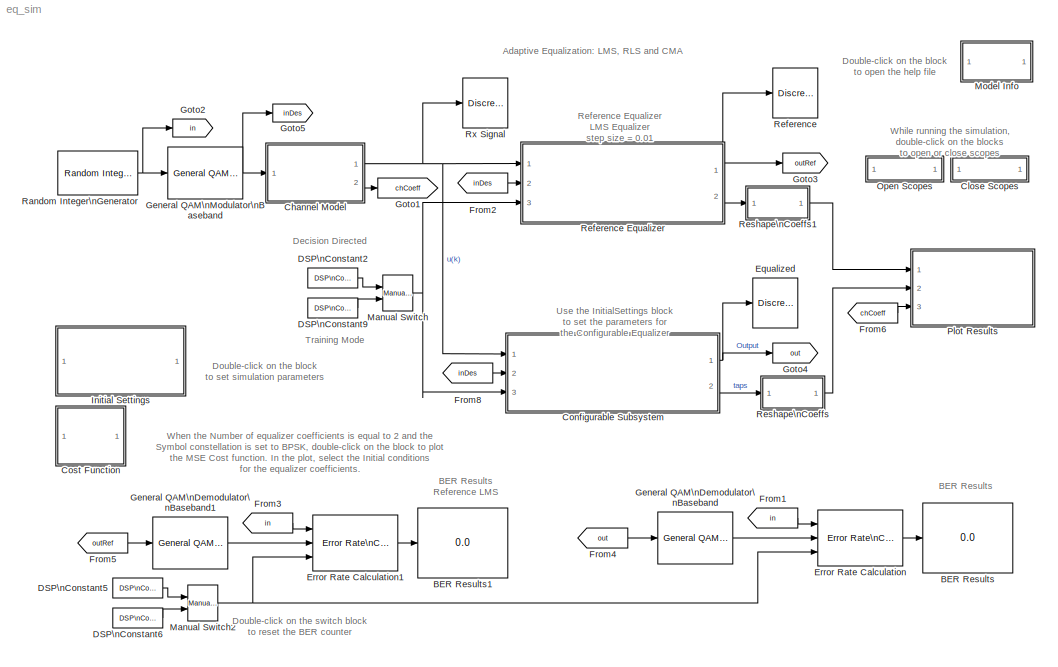
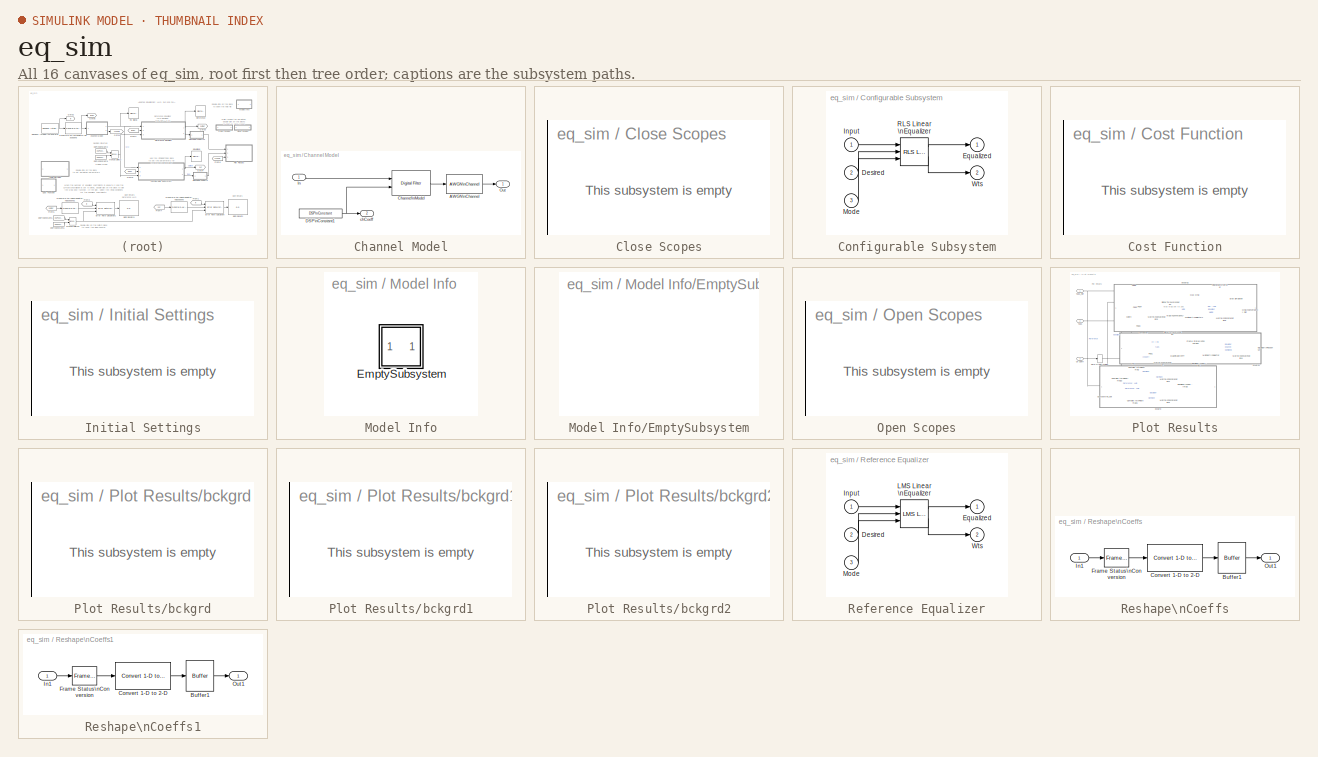
[diagram: thumbnail index - all 16 canvases of the model, root first then tree order]
MODEL eq_sim
KIND model
CONFIG StopFcn = % Call to callback function in eq_initmask\nif exist('taps','var')\neq_initmask([gcs '/Initial Settings'],'plotCostTrajectory',taps,tapsRef,eq);\nend
WORKSPACE source: external: M-Code  (data not in archive)
BLOCK [Display] BER Results
  Decimation = 1
  Ports = [1]
BLOCK [Display] BER Results1
  Decimation = 1
  Ports = [1]
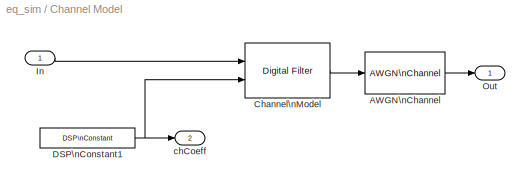
BLOCK [SubSystem] Channel Model
  MaskCallbackString = |
  MaskDisplay = plot([-pi:pi/128:(pi-pi/128)],chCoeff_fdB);
  MaskEnableString = on,on
  MaskIconFrame = on
  MaskIconOpaque = on
  MaskIconRotate = none
  MaskIconUnits = autoscale
  MaskInitialization = chCoeff_fdB = 10*log10(abs(abs(fftshift(fft(chCoeff,256)))));\nsigmaN2 = 10^(-snrdB/10);
  MaskPromptString = Channel Coefficients:|SNR (in dB):
  MaskStyleString = edit,edit
  MaskTabNameString = ,
  MaskToolTipString = on,on
  MaskTunableValueString = on,on
  MaskType = Channel Model
  MaskValueString = eq.chCoeff|eq.snrdB
  MaskVarAliasString = ,
  MaskVariables = chCoeff=@1;snrdB=@2;
  MaskVisibilityString = on,on
  MinAlgLoopOccurrences = off
  Ports = [1, 2]
  PropExecContextAcrossSSBoundary = on
  RTWSystemCode = Auto
  TreatAsAtomicUnit = off
BLOCK [Reference] Channel Model/AWGN\nChannel  REF=commchan2/AWGN\nChannel
  EbNodB = 10
  EsNodB = 10
  Ports = [1, 1]
  Ps = 1
  SNRdB = snrdB
  ShowPortLabels = on
  SourceBlock = commchan2/AWGN\nChannel
  SourceType = AWGN Channel
  Tsym = 1
  bitsPerSym = 1
  noiseMode = Signal to noise ratio  (SNR)
  seed = 1237
  variance = sigmaN2
BLOCK [Reference] Channel Model/Channel\nModel  REF=dsparch4/Digital Filter
  AllPoleFiltStruct = Direct form
  BiQuadCoeffs = [1 0.3 0.4 1 0.1 0.2]
  CoeffSource = Input port(s)
  DenCoeffs = [1 0.1]
  FIRFiltStruct = Direct form transposed
  FiltPerSampPopup = One filter per frame
  IC = 0
  ICden = 0
  ICnum = 0
  IIRFiltStruct = Direct form II transposed
  LatticeCoeffs = [0.2 0.4]
  NumCoeffs = chCoeff
  Ports = [2, 1]
  SourceBlock = dsparch4/Digital Filter
  SourceType = Digital Filter
  TypePopup = FIR (all zeros)
  accumFracLength = 30
  accumMode = Same as product output
  accumWordLength = 32
  additionalParams = off
  allowOverrides = on
  denIgnore = on
  firstCoeffFracLength = 15
  firstCoeffMode = Same as input
  firstCoeffWordLength = 16
  memoryFracLength = 15
  memoryMode = Same as input
  memoryWordLength = 16
  outputFracLength = 15
  outputMode = Same as input
  outputWordLength = 16
  overflowMode = off
  prodOutputFracLength = 30
  prodOutputMode = Same as input
  prodOutputWordLength = 32
  roundingMode = Floor
  secondCoeffFracLength = 15
  secondCoeffMode = Same as numerator
  secondCoeffWordLength = 16
  showAcc = off
  showCoeff = off
  showMem = off
  showMpy = off
  showOut = off
  thirdCoeffFracLength = 15
  thirdCoeffMode = Same as input
  thirdCoeffWordLength = 16
BLOCK [Reference] Channel Model/DSP\nConstant1  REF=dspsrcs4/DSP\nConstant
  FramebasedOutput = on
  InterpretAs1D = off
  Ports = [0, 1]
  SampleMode = Discrete
  ShowPortLabels = on
  SourceBlock = dspsrcs4/DSP\nConstant
  SourceType = DSP Constant
  Ts = 1
  Value = eq.chCoeff
  additionalParams = off
  allowOverrides = on
  continuousOutput = Sample-based
  dataType = Inherit from 'Constant value'
  discreteOutput = Frame-based
  fracBitsMode = Best precision
  framePeriod = 1
  numFracBits = 15
  sampTime = 1
  udDataType = sfix(16)
  wordLen = 16
BLOCK [Inport] Channel Model/In
  IconDisplay = Port number
  LatchInput = off
BLOCK [Outport] Channel Model/Out
  BusOutputAsStruct = off
  IconDisplay = Port number
BLOCK [Outport] Channel Model/chCoeff
  BusOutputAsStruct = off
  IconDisplay = Port number
  Port = 2
BLOCK [SubSystem] Close Scopes
  MaskDisplay = disp('Close Scopes');
  MaskIconFrame = on
  MaskIconOpaque = on
  MaskIconRotate = none
  MaskIconUnits = autoscale
  MinAlgLoopOccurrences = off
  OpenFcn = str1 = 'Plot Results';                                                     \n        str2 = 'MSE Convergency Plot';                                             \n        str3 = 'Equalizer Response';                                               \n        str4 = 'Equalizer Taps - Real';                                            \n        str5 = 'Equalizer Taps - Imag';                             ...<+1026ch>
  Ports = []
  PropExecContextAcrossSSBoundary = on
  RTWSystemCode = Auto
  TreatAsAtomicUnit = off
BLOCK [SubSystem] Configurable Subsystem
  AttributesFormatString = %<BlockChoice>
  BlockChoice = RLS Linear  Equalizer
  MaskDisplay = disp(get_param(gcb,'BlockChoice'))
  MaskIconFrame = on
  MaskIconOpaque = off
  MaskIconRotate = none
  MaskIconUnits = autoscale
  MemberBlocks = CMA Equalizer,LMS Linear  Equalizer,Normalized LMS  Linear Equalizer,RLS Linear  Equalizer,Sign LMS Linear  Equalizer,Variable Step LMS  Linear Equalizer
  MinAlgLoopOccurrences = off
  Ports = [3, 2]
  PropExecContextAcrossSSBoundary = on
  RTWSystemCode = Auto
  TemplateBlock = eq_lib/Configurable Subsystem
  TreatAsAtomicUnit = off
BLOCK [Inport] Configurable Subsystem/Desired
  IconDisplay = Port number
  LatchInput = off
  Port = 2
BLOCK [Outport] Configurable Subsystem/Equalized
  BusOutputAsStruct = off
  IconDisplay = Port number
BLOCK [Inport] Configurable Subsystem/Input
  IconDisplay = Port number
  LatchInput = off
BLOCK [Inport] Configurable Subsystem/Mode
  IconDisplay = Port number
  LatchInput = off
  Port = 3
BLOCK [Reference] Configurable Subsystem/RLS Linear \nEqualizer  REF=commeq2/RLS Linear \nEqualizer
  Ports = [3, 2]
  ShowPortLabels = on
  SourceBlock = commeq2/RLS Linear \nEqualizer
  SourceType = RLS Linear Equalizer
  delay = eq.delta_opt+1
  initWeights = eq.ic
  invCorr = eq.icCorr
  lambda = eq.lambda
  mode = on
  nSamp = 1
  nTaps = eq.numTaps
  outErr = off
  outWeights = on
  sigConst = eq.const
BLOCK [Outport] Configurable Subsystem/Wts
  BusOutputAsStruct = off
  IconDisplay = Port number
  Port = 2
BLOCK [SubSystem] Cost Function
  MaskDisplay = disp('Plot\\nCost\\nFunction');
  MaskHelp = eval('commdemohelp;');
  MaskIconFrame = on
  MaskIconOpaque = on
  MaskIconRotate = none
  MaskIconUnits = autoscale
  MaskType = Plot Cost Function
  MinAlgLoopOccurrences = off
  OpenFcn = eq_initmask([gcs '/Initial Settings'],'plotCostFcn');
  Ports = []
  PropExecContextAcrossSSBoundary = on
  RTWSystemCode = Auto
  TreatAsAtomicUnit = off
BLOCK [Reference] DSP\nConstant2  REF=dspsrcs4/DSP\nConstant
  AttributesFormatString = <path>
  FramebasedOutput = on
  InterpretAs1D = off
  Ports = [0, 1]
  SampleMode = Discrete
  ShowPortLabels = on
  SourceBlock = dspsrcs4/DSP\nConstant
  SourceType = DSP Constant
  Ts = 1
  Value = 0
  additionalParams = off
  allowOverrides = on
  continuousOutput = Sample-based
  dataType = Inherit from 'Constant value'
  discreteOutput = Frame-based
  fracBitsMode = Best precision
  framePeriod = 1
  isSigned = on
  numFracBits = 15
  sampTime = 1
  udDataType = sfix(16)
  wordLen = 16
BLOCK [Reference] DSP\nConstant5  REF=dspsrcs4/DSP\nConstant
  AttributesFormatString = <path>
  FramebasedOutput = on
  InterpretAs1D = off
  Ports = [0, 1]
  SampleMode = Discrete
  ShowPortLabels = on
  SourceBlock = dspsrcs4/DSP\nConstant
  SourceType = DSP Constant
  Ts = 1
  Value = 0
  additionalParams = off
  allowOverrides = on
  continuousOutput = Sample-based
  dataType = Inherit from 'Constant value'
  discreteOutput = Frame-based
  fracBitsMode = Best precision
  framePeriod = 1
  isSigned = on
  numFracBits = 15
  sampTime = 1
  udDataType = sfix(16)
  wordLen = 16
BLOCK [Reference] DSP\nConstant6  REF=dspsrcs4/DSP\nConstant
  AttributesFormatString = <path>
  FramebasedOutput = on
  InterpretAs1D = off
  Ports = [0, 1]
  SampleMode = Discrete
  ShowPortLabels = on
  SourceBlock = dspsrcs4/DSP\nConstant
  SourceType = DSP Constant
  Ts = 1
  Value = 1
  additionalParams = off
  allowOverrides = on
  continuousOutput = Sample-based
  dataType = Inherit from 'Constant value'
  discreteOutput = Frame-based
  fracBitsMode = Best precision
  framePeriod = 1
  isSigned = on
  numFracBits = 15
  sampTime = 1
  udDataType = sfix(16)
  wordLen = 16
BLOCK [Reference] DSP\nConstant9  REF=dspsrcs4/DSP\nConstant
  AttributesFormatString = <path>
  FramebasedOutput = on
  InterpretAs1D = off
  Ports = [0, 1]
  SampleMode = Discrete
  ShowPortLabels = on
  SourceBlock = dspsrcs4/DSP\nConstant
  SourceType = DSP Constant
  Ts = 1
  Value = 1
  additionalParams = off
  allowOverrides = on
  continuousOutput = Sample-based
  dataType = Inherit from 'Constant value'
  discreteOutput = Frame-based
  fracBitsMode = Best precision
  framePeriod = 1
  isSigned = on
  numFracBits = 15
  sampTime = 1
  udDataType = sfix(16)
  wordLen = 16
BLOCK [Reference] Equalized  REF=commsink2/Discrete-Time\nScatter Plot\nScope
  AxisGrid = on
  FigPos = [700 100 197 197]
  FrameNumber = off
  LineColors = b
  LineMarkers = .
  Ports = [1]
  ShowPortLabels = on
  SourceBlock = commsink2/Discrete-Time\nScatter Plot\nScope
  SourceType = Discrete-Time Scatter Plot Scope
  Tag = ScatterPlot
  block_type_ = scatter
  fading = on
  numLinesMax = 50
  numNewFrames = 100
  numTraces = 200
  offsetEye = 0
  openScopeAtSimStart = on
  render = on
  sampPerSymb = 1
  xMax = 1.67983399922447
  xMin = -1.6655405290464
  yMax = 1.65049533086826
  yMin = -1.69487919740261
BLOCK [Reference] Error Rate Calculation  REF=commsink2/Error Rate\nCalculation
  N = eq.delta_opt+1
  PMode = Port
  Ports = [3, 1]
  RsMode2 = on
  SourceBlock = commsink2/Error Rate\nCalculation
  SourceType = Error Rate Calculation
  WsName = ErrorVec
  cp_mode = Entire frame
  maxBits = 1e6
  numErr = 100
  st_delay = 0
  stop = off
  subframe = []
BLOCK [Reference] Error Rate Calculation1  REF=commsink2/Error Rate\nCalculation
  N = eq.delta_opt+1
  PMode = Port
  Ports = [3, 1]
  RsMode2 = on
  SourceBlock = commsink2/Error Rate\nCalculation
  SourceType = Error Rate Calculation
  WsName = ErrorVec
  cp_mode = Entire frame
  maxBits = 1e6
  numErr = 100
  st_delay = 0
  stop = off
  subframe = []
BLOCK [From] From1
  CloseFcn = tagdialog Close
  DialogController = Simulink.DDGSource
  GotoTag = in
BLOCK [From] From2
  CloseFcn = tagdialog Close
  DialogController = Simulink.DDGSource
  GotoTag = inDes
BLOCK [From] From3
  CloseFcn = tagdialog Close
  DialogController = Simulink.DDGSource
  GotoTag = in
BLOCK [From] From4
  CloseFcn = tagdialog Close
  DialogController = Simulink.DDGSource
  GotoTag = out
BLOCK [From] From5
  CloseFcn = tagdialog Close
  DialogController = Simulink.DDGSource
  GotoTag = outRef
BLOCK [From] From6
  CloseFcn = tagdialog Close
  DialogController = Simulink.DDGSource
  GotoTag = chCoeff
BLOCK [From] From8
  CloseFcn = tagdialog Close
  DialogController = Simulink.DDGSource
  GotoTag = inDes
BLOCK [Reference] General QAM\nDemodulator\nBaseband  REF=commdigbbndam2/General QAM\nDemodulator\nBaseband
  Ports = [1, 1]
  SigCon = eq.const
  SourceBlock = commdigbbndam2/General QAM\nDemodulator\nBaseband
  SourceType = General QAM Demodulator Baseband
  numSamp = 1
BLOCK [Reference] General QAM\nDemodulator\nBaseband1  REF=commdigbbndam2/General QAM\nDemodulator\nBaseband
  Ports = [1, 1]
  SigCon = eq.const
  SourceBlock = commdigbbndam2/General QAM\nDemodulator\nBaseband
  SourceType = General QAM Demodulator Baseband
  numSamp = 1
BLOCK [Reference] General QAM\nModulator\nBaseband  REF=commdigbbndam2/General QAM\nModulator\nBaseband
  Ports = [1, 1]
  SigCon = eq.const
  SourceBlock = commdigbbndam2/General QAM\nModulator\nBaseband
  SourceType = General QAM Modulator Baseband
  numSamp = 1
BLOCK [Goto] Goto1
  DialogController = Simulink.DDGSource
  GotoTag = chCoeff
  TagVisibility = global
BLOCK [Goto] Goto2
  DialogController = Simulink.DDGSource
  GotoTag = in
  TagVisibility = global
BLOCK [Goto] Goto3
  DialogController = Simulink.DDGSource
  GotoTag = outRef
  TagVisibility = global
BLOCK [Goto] Goto4
  DialogController = Simulink.DDGSource
  GotoTag = out
  TagVisibility = global
BLOCK [Goto] Goto5
  DialogController = Simulink.DDGSource
  GotoTag = inDes
  TagVisibility = global
BLOCK [SubSystem] Initial Settings
  MaskCallbackString = ||eq_initmask(gcb,'cbNumTaps');|eq_initmask(gcb,'cbEqAlg');|eq_initmask(gcb,'cbSymConst');|eq_initmask(gcb,'cbSymConstCMA');|eq_initmask(gcb,'cbMconst');|||||||||||
  MaskDescription = Compare the performance of different T-space linear equalizers with a reference equalizer.\n\nUse the following mask to select the different parameters for the simulation.
  MaskDisplay = disp('Initial Settings')
  MaskEnableString = on,on,on,on,on,off,on,off,off,off,off,off,off,off,on,on,on,on
  MaskHelp = eval('commdemohelp;');
  MaskIconFrame = on
  MaskIconOpaque = on
  MaskIconRotate = none
  MaskIconUnits = autoscale
  MaskInitialization = eStr = eq_initmask(gcb,'init');\n		\nif ~isempty(eStr.emsg)\n	errordlg(eStr.emsg, 'Equalizer Demo', 'replace');\nend\n\nif ~isempty(eStr.emsg_w) \n	warndlg(eStr.emsg_w, 'Equalizer Demo', 'replace');\nend\n\n
  MaskPromptString = FIR Channel coefficients:|SNR (in dB):|Number of equalizer coefficients:|Equalization Algorithm|Symbol Constellation|Symbol Constellation|Number of points in constellation:|Step-size:|Normalization bias:|Leakage factor:|Initial Step-size parameter:|Increment value of Step-size parameter:|Maximum Step-size parameter:|Minimum Step-size parameter:|Forgetting factor (lambda):|Initial conditions for in...<+112ch>
  MaskSelfModifiable = on
  MaskStyleString = edit,edit,edit,popup(LMS - Least-Mean-Square|Sign LMS|NLMS - Normalized LMS|VSLMS - Variable Step-size LMS|RLS - Recursive Least-Squares|CMA - Constant Modulus Algorithm),popup(BPSK|QPSK|M-PSK|M-QAM),popup(BPSK|QPSK|M-PSK),edit,edit,edit,edit,edit,edit,edit,edit,edit,edit,edit,checkbox
  MaskTabNameString = ,,,,,,,,,,,,,,,,,
  MaskToolTipString = on,on,on,on,on,on,on,on,on,on,on,on,on,on,on,on,on,on
  MaskTunableValueString = off,off,off,off,off,off,off,off,off,off,off,off,off,off,off,off,off,off
  MaskType = Adaptive Equalization Example
  MaskValueString = [1 0.5 0.3]|40|2|RLS - Recursive Least-Squares|BPSK|BPSK|16|0.1|1e-3|1|0.1|0.01|0.3|1e-4|0.9|100|[0.62379    -0.17516]|off
  MaskVarAliasString = ,,,,,,,,,,,,,,,,,
  MaskVariables = chCoeff=@1;snrdB=@2;numTaps=@3;eqAlg=@4;symConst=@5;symConstCMA=@6;Mconst=@7;stepSize=@8;normalBias=@9;leakage=@10;muParIni=@11;muParStep=@12;muParMax=@13;muParMin=@14;lambdaPar=@15;icCorr=@16;icCoeff=@17;displayChk=@18;
  MaskVisibilityString = on,on,on,on,on,off,off,off,off,off,off,off,off,off,on,on,on,on
  MinAlgLoopOccurrences = off
  Ports = []
  PropExecContextAcrossSSBoundary = on
  RTWSystemCode = Auto
  TreatAsAtomicUnit = off
BLOCK [Reference] Manual Switch  REF=simulink/Signal\nRouting/Manual Switch
  Ports = [2, 1]
  ShowPortLabels = on
  SourceBlock = simulink/Signal\nRouting/Manual Switch
  SourceType = Manual Switch
  action = 0
  sw = 0
BLOCK [Reference] Manual Switch2  REF=simulink/Signal\nRouting/Manual Switch
  Ports = [2, 1]
  ShowPortLabels = on
  SourceBlock = simulink/Signal\nRouting/Manual Switch
  SourceType = Manual Switch
  action = 0
  sw = 1
BLOCK [SubSystem] Model Info
  CopyFcn = slcm CopyBlock;
  DeleteFcn = slcm Cancel;
  InitFcn = slcm('UpdateAllCMBlocksInThisModelInit')
  LoadFcn = slcm LoadBlock;
  MaskCallbackString = ||||||||||||||||||||||||||||||
  MaskDescription = This block allows revision control information to be displayed within the model.
  MaskDisplay = text(str2num(LeftAlignmentValue), 0.5, MaskDisplayString, 'HorizontalAlignment', HorizontalTextAlignment)\n
  MaskEnableString = on,on,on,on,on,on,on,on,on,on,on,on,on,on,on,on,on,on,on,on,on,on,on,on,on,on,on,on,on,on,on
  MaskIconFrame = on
  MaskIconOpaque = on
  MaskIconRotate = none
  MaskIconUnits = normalized
  MaskPromptString = InitialSaveTempField|InitialBlockCM|BlockCM|Frame|SaveTempField|DisplayStringWithTags|MaskDisplayString|HorizontalTextAlignment|LeftAlignmentValue|SourceBlockDiagram|TagMaxNumber|CMTag1|CMTag2|CMTag3|CMTag4|CMTag5|CMTag6|CMTag7|CMTag8|CMTag9|CMTag10|CMTag11|CMTag12|CMTag13|CMTag14|CMTag15|CMTag16|CMTag17|CMTag18|CMTag19|CMTag20
  MaskSelfModifiable = on
  MaskStyleString = edit,edit,edit,edit,edit,edit,edit,edit,edit,edit,edit,edit,edit,edit,edit,edit,edit,edit,edit,edit,edit,edit,edit,edit,edit,edit,edit,edit,edit,edit,edit
  MaskTabNameString = ,,,,,,,,,,,,,,,,,,,,,,,,,,,,,,
  MaskToolTipString = on,on,on,on,on,on,on,on,on,on,on,on,on,on,on,on,on,on,on,on,on,on,on,on,on,on,on,on,on,on,on
  MaskTunableValueString = on,on,on,on,on,on,on,on,on,on,on,on,on,on,on,on,on,on,on,on,on,on,on,on,on,on,on,on,on,on,on
  MaskType = CMBlock
  MaskValueString = |none|none|on||Info|Info|Center|0.5|eq_sim|20||||||||||||||||||||
  MaskVarAliasString = ,,,,,,,,,,,,,,,,,,,,,,,,,,,,,,
  MaskVariables = InitialSaveTempField=&1;InitialBlockCM=&2;BlockCM=&3;Frame=&4;SaveTempField=&5;DisplayStringWithTags=&6;MaskDisplayString=&7;HorizontalTextAlignment=&8;LeftAlignmentValue=&9;SourceBlockDiagram=&10;TagMaxNumber=@11;CMTag1=&12;CMTag2=&13;CMTag3=&14;CMTag4=&15;CMTag5=&16;CMTag6=&17;CMTag7=&18;CMTag8=&19;CMTag9=&20;CMTag10=&21;CMTag11=&22;CMTag12=&23;CMTag13=&24;CMTag14=&25;CMTag15=&26;CMTag16=&27;CMT...<+45ch>
  MaskVisibilityString = off,off,off,off,off,off,off,off,off,off,off,off,off,off,off,off,off,off,off,off,off,off,off,off,off,off,off,off,off,off,off
  MinAlgLoopOccurrences = off
  NameChangeFcn = slcm Rename;
  OpenFcn = commdemohelp;
  Ports = []
  PostSaveFcn = slcm('UpdateAllCMBlocksInThisModel')
  PropExecContextAcrossSSBoundary = on
  RTWSystemCode = Auto
  TreatAsAtomicUnit = off
BLOCK [SubSystem] Model Info/EmptySubsystem
  MinAlgLoopOccurrences = off
  Ports = []
  PropExecContextAcrossSSBoundary = on
  RTWSystemCode = Auto
  TreatAsAtomicUnit = off
BLOCK [SubSystem] Open Scopes
  MaskDisplay = disp('Open Scopes');
  MaskIconFrame = on
  MaskIconOpaque = on
  MaskIconRotate = none
  MaskIconUnits = autoscale
  MaskType = Open Scopes
  MinAlgLoopOccurrences = off
  OpenFcn = str1 = 'Plot Results';                                                            \n        str2 = 'MSE Convergency Plot';                                            \n        str3 = 'Equalizer Response';                                              \n        str4 = 'Equalizer Taps - Real';                                           \n        str5 = 'Equalizer Taps - Imag';                         ...<+1017ch>
  Ports = []
  PropExecContextAcrossSSBoundary = on
  RTWSystemCode = Auto
  TreatAsAtomicUnit = off
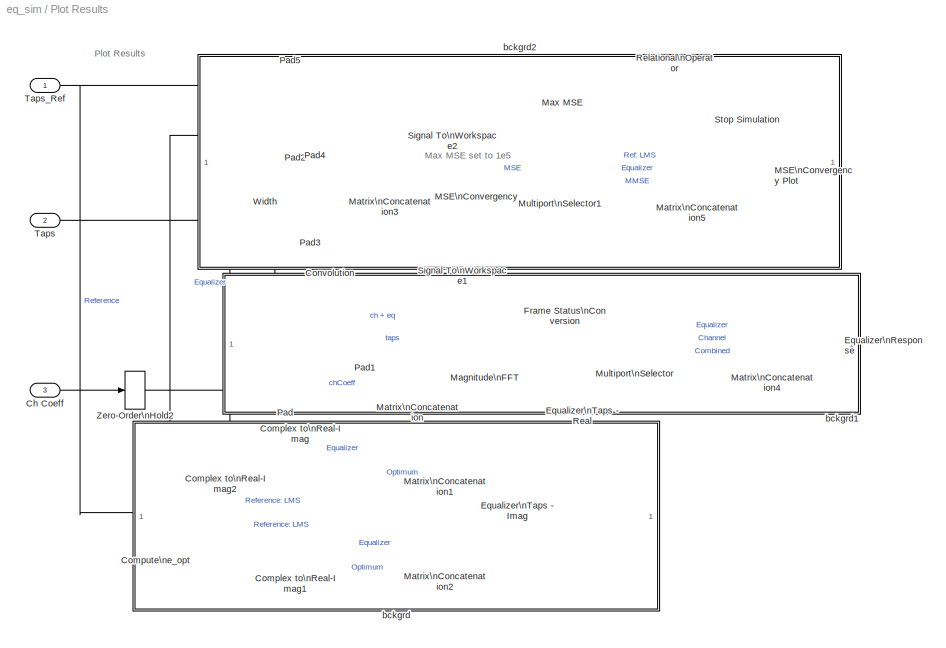
BLOCK [SubSystem] Plot Results
  MaskDisplay = disp('Plot Results')\nport_label('input',1,'tapsRef')\nport_label('input',2,'taps')\nport_label('input',3,'chCoeff')
  MaskIconFrame = on
  MaskIconOpaque = on
  MaskIconRotate = none
  MaskIconUnits = autoscale
  MinAlgLoopOccurrences = off
  Ports = [3]
  PropExecContextAcrossSSBoundary = on
  RTWSystemCode = Auto
  TreatAsAtomicUnit = off
BLOCK [Inport] Plot Results/Ch Coeff
  IconDisplay = Port number
  LatchInput = off
  Port = 3
BLOCK [ComplexToRealImag] Plot Results/Complex to\nReal-Imag
  Output = Real and imag
  Ports = [1, 2]
BLOCK [ComplexToRealImag] Plot Results/Complex to\nReal-Imag1
  Output = Real and imag
  Ports = [1, 2]
BLOCK [ComplexToRealImag] Plot Results/Complex to\nReal-Imag2
  Output = Real and imag
  Ports = [1, 2]
BLOCK [MATLABFcn] Plot Results/Compute\ne_opt
  MATLABFcn = eq_getopt(u.', eq.numTaps, 1, 10^(-eq.snrdB/10));
  Output1D = off
  OutputDimensions = [eq.numTaps 1]
  OutputSignalType = complex
BLOCK [Reference] Plot Results/Convolution  REF=dspsigops/Convolution
  DialogController = dspDDGCreate
  DialogControllerArgs = DataTag0
  LockScale = off
  Ports = [2, 1]
  SourceBlock = dspsigops/Convolution
  SourceType = Convolution
  accumFracLength = 30
  accumMode = Same as product output
  accumWordLength = 32
  additionalParams = off
  allowOverrides = on
  domain = Time
  outputFracLength = 15
  outputMode = Same as first input
  outputWordLength = 16
  overflowMode = off
  prodOutputFracLength = 30
  prodOutputMode = Same as first input
  prodOutputWordLength = 32
  roundingMode = Floor
BLOCK [Reference] Plot Results/Equalizer\nResponse  REF=dspsnks4/Vector\nScope
  AttributesFormatString = \\n\\n
  AxisGrid = on
  AxisLegend = on
  AxisProperties = off
  AxisZoom = off
  DisplayProperties = on
  Domain = Frequency
  FigPos = [280 140 403 256]
  FrameNumber = off
  HorizSpan = 1
  InheritXIncr = on
  LineColors = [0 0 1]|[1 0 0]|[0 0 0]
  LineProperties = off
  Memory = off
  OpenScopeAtSimStart = on
  OpenScopeImmediately = off
  Ports = [1]
  ScopeProperties = off
  ShowPortLabels = off
  SourceBlock = dspsnks4/Vector\nScope
  SourceType = Vector Scope
  XIncr = 1
  XLabel = Time
  XRange = [-Fs/2...Fs/2]
  XUnits = Hertz
  YLabel = Magnitude
  YMax = 13.658558955862
  YMin = -26.3159423323946
  YUnits = dB
BLOCK [Reference] Plot Results/Equalizer\nTaps - Imag  REF=dspsnks4/Vector\nScope
  AttributesFormatString = \\n\\n
  AxisGrid = on
  AxisLegend = on
  AxisProperties = off
  AxisZoom = off
  DisplayProperties = off
  Domain = User-defined
  FigPos = [0 140 266 255]
  FrameNumber = off
  HorizSpan = 1
  InheritXIncr = off
  LineColors = [1 0 0]|[0 0 1]
  LineMarkers = o|x|.
  LineProperties = off
  LineStyles = |--
  Memory = off
  OpenScopeAtSimStart = on
  OpenScopeImmediately = off
  Ports = [1]
  ScopeProperties = off
  ShowPortLabels = off
  SourceBlock = dspsnks4/Vector\nScope
  SourceType = Vector Scope
  XIncr = 1
  XLabel = Filter Coefficients
  XRange = [0...Fs/2]
  XUnits = Hertz
  YLabel = Coefficients - Imag part
  YMax = 1
  YMin = -1
  YUnits = dB
BLOCK [Reference] Plot Results/Equalizer\nTaps - Real  REF=dspsnks4/Vector\nScope
  AttributesFormatString = \\n\\n
  AxisGrid = on
  AxisLegend = on
  AxisProperties = off
  AxisZoom = off
  DisplayProperties = on
  Domain = User-defined
  FigPos = [0 446 267 255]
  FrameNumber = off
  HorizSpan = 1
  InheritXIncr = off
  LineColors = [1 0 0]|[0 0 1]
  LineMarkers = o|x|.
  LineProperties = off
  LineStyles = ||--
  Memory = off
  OpenScopeAtSimStart = on
  OpenScopeImmediately = off
  Ports = [1]
  ScopeProperties = off
  ShowPortLabels = off
  SourceBlock = dspsnks4/Vector\nScope
  SourceType = Vector Scope
  XIncr = 1
  XLabel = Filter Coefficients
  XRange = [0...Fs/2]
  XUnits = Hertz
  YLabel = Coefficients - Real Part
  YMax = 1
  YMin = -1
  YUnits = dB
BLOCK [Reference] Plot Results/Frame Status\nConversion  REF=dspsigattribs/Frame Status\nConversion
  Ports = [1, 1]
  ShowPortLabels = off
  SourceBlock = dspsigattribs/Frame Status\nConversion
  SourceType = Frame Status Conversion
  growRefPort = off
  outframe = Frame-based
BLOCK [MATLABFcn] Plot Results/MSE\nConvergency
  MATLABFcn = eq_mmseconverg(u(:,[1 4]), u(:,2), eq.numTaps,  1, 10^(-eq.snrdB/10),u(1,3));
  Output1D = off
  OutputDimensions = [1 3]
  OutputSignalType = real
BLOCK [Reference] Plot Results/MSE\nConvergency Plot  REF=dspsnks4/Vector\nScope
  AttributesFormatString = \\n\\n
  AxisGrid = on
  AxisLegend = on
  AxisProperties = off
  AxisZoom = off
  DisplayProperties = off
  Domain = Time
  FigPos = [280 447 403 254]
  FrameNumber = off
  HorizSpan = 313
  InheritXIncr = on
  LineColors = [1 0 0]|[0 0 1]|[0 0 0]
  LineMarkers = ||None
  LineProperties = off
  LineStyles = ||--
  Memory = off
  OpenScopeAtSimStart = on
  OpenScopeImmediately = off
  Ports = [1]
  ScopeProperties = off
  ShowPortLabels = off
  SourceBlock = dspsnks4/Vector\nScope
  SourceType = Vector Scope
  XIncr = 1
  XLabel = Time
  XRange = [0...Fs/2]
  XUnits = Hertz
  YLabel = MSE Convergency
  YMax = 0.5
  YMin = 0
  YUnits = dB
BLOCK [Reference] Plot Results/Magnitude\nFFT  REF=dspspect3/Magnitude\nFFT
  Ports = [1, 1]
  ShowPortLabels = on
  SourceBlock = dspspect3/Magnitude\nFFT
  SourceType = Magnitude FFT
  fftLenInherit = off
  fftsize = 256
  mag_or_magsq = Magnitude squared
BLOCK [Reference] Plot Results/Matrix\nConcatenation  REF=simulink/Math\nOperations/Matrix\nConcatenation
  Ports = [3, 1]
  SourceBlock = simulink/Math\nOperations/Matrix\nConcatenation
  SourceType = Matrix Concatenation
  catMethod = Horizontal
  numInports = 3
BLOCK [Reference] Plot Results/Matrix\nConcatenation1  REF=simulink/Math\nOperations/Matrix\nConcatenation
  Ports = [3, 1]
  SourceBlock = simulink/Math\nOperations/Matrix\nConcatenation
  SourceType = Matrix Concatenation
  catMethod = Horizontal
  numInports = 3
BLOCK [Reference] Plot Results/Matrix\nConcatenation2  REF=simulink/Math\nOperations/Matrix\nConcatenation
  Ports = [3, 1]
  SourceBlock = simulink/Math\nOperations/Matrix\nConcatenation
  SourceType = Matrix Concatenation
  catMethod = Horizontal
  numInports = 3
BLOCK [Reference] Plot Results/Matrix\nConcatenation3  REF=simulink/Math\nOperations/Matrix\nConcatenation
  Ports = [4, 1]
  SourceBlock = simulink/Math\nOperations/Matrix\nConcatenation
  SourceType = Matrix Concatenation
  catMethod = Horizontal
  numInports = 4
BLOCK [Reference] Plot Results/Matrix\nConcatenation4  REF=simulink/Math\nOperations/Matrix\nConcatenation
  Ports = [3, 1]
  SourceBlock = simulink/Math\nOperations/Matrix\nConcatenation
  SourceType = Matrix Concatenation
  catMethod = Horizontal
  numInports = 3
BLOCK [Reference] Plot Results/Matrix\nConcatenation5  REF=simulink/Math\nOperations/Matrix\nConcatenation
  Ports = [3, 1]
  SourceBlock = simulink/Math\nOperations/Matrix\nConcatenation
  SourceType = Matrix Concatenation
  catMethod = Horizontal
  numInports = 3
BLOCK [Reference] Plot Results/Max MSE  REF=dspsrcs4/DSP\nConstant
  FramebasedOutput = on
  InterpretAs1D = off
  Ports = [0, 1]
  SampleMode = Discrete
  ShowPortLabels = on
  SourceBlock = dspsrcs4/DSP\nConstant
  SourceType = DSP Constant
  Ts = 1
  Value = 1e5
  additionalParams = off
  allowOverrides = on
  continuousOutput = Sample-based
  dataType = Inherit from 'Constant value'
  discreteOutput = Frame-based
  fracBitsMode = Best precision
  framePeriod = 1
  isSigned = on
  numFracBits = 15
  sampTime = 1
  udDataType = sfix(16)
  wordLen = 16
BLOCK [Reference] Plot Results/Multiport\nSelector  REF=dspindex/Multiport\nSelector
  AttributesFormatString = \\n
  Ports = [1, 3]
  SourceBlock = dspindex/Multiport\nSelector
  SourceType = Multiport Selector
  idxCellArray = {2,3,1}
  idxErrMode = Clip Index
  rowsOrCols = Columns
BLOCK [Reference] Plot Results/Multiport\nSelector1  REF=dspindex/Multiport\nSelector
  AttributesFormatString = \\n
  Ports = [1, 3]
  SourceBlock = dspindex/Multiport\nSelector
  SourceType = Multiport Selector
  idxCellArray = {1,2,3}
  idxErrMode = Clip Index
  rowsOrCols = Columns
BLOCK [Reference] Plot Results/Pad  REF=dspsigops/Pad
  AttributesFormatString = \\n
  Ports = [1, 1]
  SourceBlock = dspsigops/Pad
  SourceType = Pad
  numOutCols = 1
  numOutRows = eq.numTaps+length(eq.chCoeff)-1
  padAlong = Columns
  padNumOutColsSpecMethod = User-specified
  padNumOutRowsSpecMethod = User-specified
  padSigAt = End
  padVal = 0
  trunc_flag = None
BLOCK [Reference] Plot Results/Pad1  REF=dspsigops/Pad
  AttributesFormatString = \\n
  Ports = [1, 1]
  SourceBlock = dspsigops/Pad
  SourceType = Pad
  numOutCols = 1
  numOutRows = eq.numTaps+length(eq.chCoeff)-1
  padAlong = Columns
  padNumOutColsSpecMethod = User-specified
  padNumOutRowsSpecMethod = User-specified
  padSigAt = End
  padVal = 0
  trunc_flag = None
BLOCK [Reference] Plot Results/Pad2  REF=dspsigops/Pad
  AttributesFormatString = \\n
  Ports = [1, 1]
  SourceBlock = dspsigops/Pad
  SourceType = Pad
  numOutCols = 1
  numOutRows = 25
  padAlong = Columns
  padNumOutColsSpecMethod = User-specified
  padNumOutRowsSpecMethod = User-specified
  padSigAt = End
  padVal = 0
  trunc_flag = None
BLOCK [Reference] Plot Results/Pad3  REF=dspsigops/Pad
  AttributesFormatString = \\n
  Ports = [1, 1]
  SourceBlock = dspsigops/Pad
  SourceType = Pad
  numOutCols = 1
  numOutRows = 25
  padAlong = Columns
  padNumOutColsSpecMethod = User-specified
  padNumOutRowsSpecMethod = User-specified
  padSigAt = End
  padVal = 0
  trunc_flag = None
BLOCK [Reference] Plot Results/Pad4  REF=dspsigops/Pad
  AttributesFormatString = \\n
  Ports = [1, 1]
  SourceBlock = dspsigops/Pad
  SourceType = Pad
  numOutCols = 1
  numOutRows = 25
  padAlong = Columns
  padNumOutColsSpecMethod = User-specified
  padNumOutRowsSpecMethod = User-specified
  padSigAt = End
  padVal = 0
  trunc_flag = None
BLOCK [Reference] Plot Results/Pad5  REF=dspsigops/Pad
  AttributesFormatString = \\n
  Ports = [1, 1]
  SourceBlock = dspsigops/Pad
  SourceType = Pad
  numOutCols = 1
  numOutRows = 25
  padAlong = Columns
  padNumOutColsSpecMethod = User-specified
  padNumOutRowsSpecMethod = User-specified
  padSigAt = End
  padVal = 0
  trunc_flag = None
BLOCK [RelationalOperator] Plot Results/Relational\nOperator
  InputSameDT = off
  Operator = <
BLOCK [Reference] Plot Results/Signal To\nWorkspace1  REF=dspsnks4/Signal To\nWorkspace
  Decimation = 1
  FixptAsFi = off
  FrameMode = Log frames separately (3-D array)
  MaxDataPoints = inf
  Ports = [1]
  ShowPortLabels = on
  SourceBlock = dspsnks4/Signal To\nWorkspace
  SourceType = Signal To Workspace
  VariableName = taps
BLOCK [Reference] Plot Results/Signal To\nWorkspace2  REF=dspsnks4/Signal To\nWorkspace
  Decimation = 1
  FixptAsFi = off
  FrameMode = Log frames separately (3-D array)
  MaxDataPoints = inf
  Ports = [1]
  ShowPortLabels = on
  SourceBlock = dspsnks4/Signal To\nWorkspace
  SourceType = Signal To Workspace
  VariableName = tapsRef
BLOCK [Stop] Plot Results/Stop Simulation
BLOCK [Inport] Plot Results/Taps
  IconDisplay = Port number
  LatchInput = off
  Port = 2
BLOCK [Inport] Plot Results/Taps_Ref
  IconDisplay = Port number
  LatchInput = off
BLOCK [Width] Plot Results/Width
BLOCK [ZeroOrderHold] Plot Results/Zero-Order\nHold2
  SampleTime = 1/100
BLOCK [SubSystem] Plot Results/bckgrd
  MaskDisplay = disp('')
  MaskIconFrame = on
  MaskIconOpaque = on
  MaskIconRotate = none
  MaskIconUnits = autoscale
  MinAlgLoopOccurrences = off
  Ports = []
  PropExecContextAcrossSSBoundary = on
  RTWSystemCode = Auto
  TreatAsAtomicUnit = off
BLOCK [SubSystem] Plot Results/bckgrd1
  MaskDisplay = disp('')
  MaskIconFrame = on
  MaskIconOpaque = on
  MaskIconRotate = none
  MaskIconUnits = autoscale
  MinAlgLoopOccurrences = off
  Ports = []
  PropExecContextAcrossSSBoundary = on
  RTWSystemCode = Auto
  TreatAsAtomicUnit = off
BLOCK [SubSystem] Plot Results/bckgrd2
  MaskDisplay = disp('')
  MaskIconFrame = on
  MaskIconOpaque = on
  MaskIconRotate = none
  MaskIconUnits = autoscale
  MinAlgLoopOccurrences = off
  Ports = []
  PropExecContextAcrossSSBoundary = on
  RTWSystemCode = Auto
  TreatAsAtomicUnit = off
BLOCK [Reference] Random Integer\nGenerator  REF=commrandsrc2/Random Integer\nGenerator
  Ports = [0, 1]
  ShowPortLabels = on
  SourceBlock = commrandsrc2/Random Integer\nGenerator
  SourceType = Random Integer Generator
  Ts = 1/100
  frameBased = on
  mul = eq.MConst
  orient = off
  sampPerFrame = 100
  seed = 12345
BLOCK [Reference] Reference  REF=commsink2/Discrete-Time\nScatter Plot\nScope
  AxisGrid = on
  FigPos = [700 350 197 197]
  FrameNumber = off
  LineColors = b
  LineMarkers = .
  Ports = [1]
  ShowPortLabels = on
  SourceBlock = commsink2/Discrete-Time\nScatter Plot\nScope
  SourceType = Discrete-Time Scatter Plot Scope
  Tag = ScatterPlot
  block_type_ = scatter
  fading = on
  numLinesMax = 50
  numNewFrames = 100
  numTraces = 200
  offsetEye = 0
  openScopeAtSimStart = on
  render = on
  sampPerSymb = 1
  xMax = 1.67983399922447
  xMin = -1.6655405290464
  yMax = 1.65049533086826
  yMin = -1.69487919740261
BLOCK [SubSystem] Reference Equalizer
  AttributesFormatString = %<BlockChoice>
  BlockChoice = LMS Linear  Equalizer
  MaskDisplay = disp(get_param(gcb,'BlockChoice'))
  MaskIconFrame = on
  MaskIconOpaque = off
  MaskIconRotate = none
  MaskIconUnits = autoscale
  MemberBlocks = CMA Equalizer,LMS Linear  Equalizer,Normalized LMS  Linear Equalizer,RLS Linear  Equalizer,Sign LMS Linear  Equalizer,Variable Step LMS  Linear Equalizer
  MinAlgLoopOccurrences = off
  Ports = [3, 2]
  PropExecContextAcrossSSBoundary = on
  RTWSystemCode = Auto
  TemplateBlock = eq_lib/Configurable Subsystem
  TreatAsAtomicUnit = off
BLOCK [Inport] Reference Equalizer/Desired
  IconDisplay = Port number
  LatchInput = off
  Port = 2
BLOCK [Outport] Reference Equalizer/Equalized
  BusOutputAsStruct = off
  IconDisplay = Port number
BLOCK [Inport] Reference Equalizer/Input
  IconDisplay = Port number
  LatchInput = off
BLOCK [Reference] Reference Equalizer/LMS Linear \nEqualizer  REF=commeq2/LMS Linear \nEqualizer
  Ports = [3, 2]
  ShowPortLabels = on
  SourceBlock = commeq2/LMS Linear \nEqualizer
  SourceType = LMS Linear Equalizer
  delay = eq.delta_opt+1
  initWeights = eq.ic
  leakage = 1
  mode = on
  nSamp = 1
  nTaps = eq.numTaps
  outErr = off
  outWeights = on
  sigConst = eq.const
  stepSize = 0.01
BLOCK [Inport] Reference Equalizer/Mode
  IconDisplay = Port number
  LatchInput = off
  Port = 3
BLOCK [Outport] Reference Equalizer/Wts
  BusOutputAsStruct = off
  IconDisplay = Port number
  Port = 2
BLOCK [SubSystem] Reshape\nCoeffs
  MinAlgLoopOccurrences = off
  Ports = [1, 1]
  PropExecContextAcrossSSBoundary = on
  RTWSystemCode = Auto
  TreatAsAtomicUnit = off
BLOCK [Reference] Reshape\nCoeffs/Buffer1  REF=dspbuff3/Buffer
  N = eq.numTaps
  Ports = [1, 1]
  SourceBlock = dspbuff3/Buffer
  SourceType = Buffer
  V = 0
  ic = 0
BLOCK [Reference] Reshape\nCoeffs/Convert 1-D to 2-D  REF=dspsigattribs/Convert 1-D to 2-D
  M = eq.numTaps*100
  N = 1
  Ports = [1, 1]
  ShowPortLabels = off
  SourceBlock = dspsigattribs/Convert 1-D to 2-D
  SourceType = Convert 1-D to 2-D
  frameBasedOut = on
BLOCK [Reference] Reshape\nCoeffs/Frame Status\nConversion  REF=dspsigattribs/Frame Status\nConversion
  Ports = [1, 1]
  ShowPortLabels = off
  SourceBlock = dspsigattribs/Frame Status\nConversion
  SourceType = Frame Status Conversion
  growRefPort = off
  outframe = Frame-based
BLOCK [Inport] Reshape\nCoeffs/In1
  IconDisplay = Port number
  LatchInput = off
BLOCK [Outport] Reshape\nCoeffs/Out1
  BusOutputAsStruct = off
  IconDisplay = Port number
BLOCK [SubSystem] Reshape\nCoeffs1
  MinAlgLoopOccurrences = off
  Ports = [1, 1]
  PropExecContextAcrossSSBoundary = on
  RTWSystemCode = Auto
  TreatAsAtomicUnit = off
BLOCK [Reference] Reshape\nCoeffs1/Buffer1  REF=dspbuff3/Buffer
  N = eq.numTaps
  Ports = [1, 1]
  SourceBlock = dspbuff3/Buffer
  SourceType = Buffer
  V = 0
  ic = 0
BLOCK [Reference] Reshape\nCoeffs1/Convert 1-D to 2-D  REF=dspsigattribs/Convert 1-D to 2-D
  M = eq.numTaps*100
  N = 1
  Ports = [1, 1]
  ShowPortLabels = off
  SourceBlock = dspsigattribs/Convert 1-D to 2-D
  SourceType = Convert 1-D to 2-D
  frameBasedOut = on
BLOCK [Reference] Reshape\nCoeffs1/Frame Status\nConversion  REF=dspsigattribs/Frame Status\nConversion
  Ports = [1, 1]
  ShowPortLabels = off
  SourceBlock = dspsigattribs/Frame Status\nConversion
  SourceType = Frame Status Conversion
  growRefPort = off
  outframe = Frame-based
BLOCK [Inport] Reshape\nCoeffs1/In1
  IconDisplay = Port number
  LatchInput = off
BLOCK [Outport] Reshape\nCoeffs1/Out1
  BusOutputAsStruct = off
  IconDisplay = Port number
BLOCK [Reference] Rx Signal  REF=commsink2/Discrete-Time\nScatter Plot\nScope
  AxisGrid = on
  FigPos = [700 600 197 197]
  FrameNumber = off
  LineColors = b
  LineMarkers = .
  Ports = [1]
  ShowPortLabels = on
  SourceBlock = commsink2/Discrete-Time\nScatter Plot\nScope
  SourceType = Discrete-Time Scatter Plot Scope
  Tag = ScatterPlot
  block_type_ = scatter
  fading = on
  inphaseLabel = .
  numLinesMax = 50
  numNewFrames = 100
  numTraces = 200
  offsetEye = 0
  openScopeAtSimStart = on
  render = on
  sampPerSymb = 1
  xMax = 1.5
  xMin = -1.5
  yMax = 1.5
  yMin = -1.5
ANNOTATION (root): Adaptive Equalization: LMS, RLS and CMA
ANNOTATION (root): BER Results
ANNOTATION (root): BER Results\nReference LMS
ANNOTATION (root): Decision Directed
ANNOTATION (root): Double-click on the block\nto open the help file
ANNOTATION (root): Double-click on the block\nto set simulation parameters
ANNOTATION (root): Double-click on the switch block \nto reset the BER counter
ANNOTATION (root): Reference Equalizer\nLMS Equalizer\nstep size = 0.01
ANNOTATION (root): Training Mode
ANNOTATION (root): Use the InitialSettings block\nto set the parameters for \nthe Configurable Equalizer
ANNOTATION (root): When the Number of equalizer coefficients is equal to 2 and the\nSymbol constellation is set to BPSK, double-click on the block to plot \nthe MSE Cost function. In the plot, select the Initial conditions\nfor the equalizer coefficients.
ANNOTATION (root): While running the simulation,\ndouble-click on the blocks\nto open or close scopes
ANNOTATION Close Scopes: This subsystem is empty
ANNOTATION Cost Function: This subsystem is empty
ANNOTATION Initial Settings: This subsystem is empty
ANNOTATION Open Scopes: This subsystem is empty
ANNOTATION Plot Results: Max MSE set to 1e5
ANNOTATION Plot Results: Plot Results
ANNOTATION Plot Results/bckgrd: This subsystem is empty
ANNOTATION Plot Results/bckgrd1: This subsystem is empty
ANNOTATION Plot Results/bckgrd2: This subsystem is empty
LINE Channel Model/AWGN\nChannel:1 -> Channel Model/Out:1
LINE Channel Model/Channel\nModel:1 -> Channel Model/AWGN\nChannel:1
NET Channel Model/DSP\nConstant1:1 -> Channel Model/Channel\nModel:2, Channel Model/chCoeff:1
LINE Channel Model/In:1 -> Channel Model/Channel\nModel:1
NET Channel Model:1 -> Configurable Subsystem:1, Reference Equalizer:1, Rx Signal:1
LINE Channel Model:2 -> Goto1:1
LINE Configurable Subsystem/Desired:1 -> Configurable Subsystem/RLS Linear \nEqualizer:2
LINE Configurable Subsystem/Input:1 -> Configurable Subsystem/RLS Linear \nEqualizer:1
LINE Configurable Subsystem/Mode:1 -> Configurable Subsystem/RLS Linear \nEqualizer:3
LINE Configurable Subsystem/RLS Linear \nEqualizer:1 -> Configurable Subsystem/Equalized:1
LINE Configurable Subsystem/RLS Linear \nEqualizer:2 -> Configurable Subsystem/Wts:1
NET Configurable Subsystem:1 -> Equalized:1, Goto4:1
LINE Configurable Subsystem:2 -> Reshape\nCoeffs:1
LINE DSP\nConstant2:1 -> Manual Switch:1
LINE DSP\nConstant5:1 -> Manual Switch2:1
LINE DSP\nConstant6:1 -> Manual Switch2:2
LINE DSP\nConstant9:1 -> Manual Switch:2
LINE Error Rate Calculation1:1 -> BER Results1:1
LINE Error Rate Calculation:1 -> BER Results:1
LINE From1:1 -> Error Rate Calculation:1
LINE From2:1 -> Reference Equalizer:2
LINE From3:1 -> Error Rate Calculation1:1
LINE From4:1 -> General QAM\nDemodulator\nBaseband:1
LINE From5:1 -> General QAM\nDemodulator\nBaseband1:1
LINE From6:1 -> Plot Results:3
LINE From8:1 -> Configurable Subsystem:2
LINE General QAM\nDemodulator\nBaseband1:1 -> Error Rate Calculation1:2
LINE General QAM\nDemodulator\nBaseband:1 -> Error Rate Calculation:2
NET General QAM\nModulator\nBaseband:1 -> Channel Model:1, Goto5:1
NET Manual Switch2:1 -> Error Rate Calculation1:3, Error Rate Calculation:3
NET Manual Switch:1 -> Configurable Subsystem:3, Reference Equalizer:3
LINE Plot Results/Ch Coeff:1 -> Plot Results/Zero-Order\nHold2:1
LINE Plot Results/Complex to\nReal-Imag1:1 -> Plot Results/Matrix\nConcatenation1:3
LINE Plot Results/Complex to\nReal-Imag1:2 -> Plot Results/Matrix\nConcatenation2:3
LINE Plot Results/Complex to\nReal-Imag2:1 -> Plot Results/Matrix\nConcatenation1:1
LINE Plot Results/Complex to\nReal-Imag2:2 -> Plot Results/Matrix\nConcatenation2:1
LINE Plot Results/Complex to\nReal-Imag:1 -> Plot Results/Matrix\nConcatenation1:2
LINE Plot Results/Complex to\nReal-Imag:2 -> Plot Results/Matrix\nConcatenation2:2
LINE Plot Results/Compute\ne_opt:1 -> Plot Results/Complex to\nReal-Imag1:1
LINE Plot Results/Convolution:1 -> Plot Results/Matrix\nConcatenation:1
LINE Plot Results/Frame Status\nConversion:1 -> Plot Results/Multiport\nSelector:1
LINE Plot Results/MSE\nConvergency:1 -> Plot Results/Multiport\nSelector1:1
LINE Plot Results/Magnitude\nFFT:1 -> Plot Results/Frame Status\nConversion:1
LINE Plot Results/Matrix\nConcatenation1:1 -> Plot Results/Equalizer\nTaps - Real:1
LINE Plot Results/Matrix\nConcatenation2:1 -> Plot Results/Equalizer\nTaps - Imag:1
LINE Plot Results/Matrix\nConcatenation3:1 -> Plot Results/MSE\nConvergency:1
LINE Plot Results/Matrix\nConcatenation4:1 -> Plot Results/Equalizer\nResponse:1
LINE Plot Results/Matrix\nConcatenation5:1 -> Plot Results/MSE\nConvergency Plot:1
LINE Plot Results/Matrix\nConcatenation:1 -> Plot Results/Magnitude\nFFT:1
LINE Plot Results/Max MSE:1 -> Plot Results/Relational\nOperator:1
NET Plot Results/Multiport\nSelector1:1 -> Plot Results/Matrix\nConcatenation5:1, Plot Results/Relational\nOperator:2
LINE Plot Results/Multiport\nSelector1:2 -> Plot Results/Matrix\nConcatenation5:2
LINE Plot Results/Multiport\nSelector1:3 -> Plot Results/Matrix\nConcatenation5:3
LINE Plot Results/Multiport\nSelector:1 -> Plot Results/Matrix\nConcatenation4:1
LINE Plot Results/Multiport\nSelector:2 -> Plot Results/Matrix\nConcatenation4:2
LINE Plot Results/Multiport\nSelector:3 -> Plot Results/Matrix\nConcatenation4:3
LINE Plot Results/Pad1:1 -> Plot Results/Matrix\nConcatenation:2
LINE Plot Results/Pad2:1 -> Plot Results/Matrix\nConcatenation3:2
NET Plot Results/Pad3:1 -> Plot Results/Matrix\nConcatenation3:4, Plot Results/Signal To\nWorkspace1:1
LINE Plot Results/Pad4:1 -> Plot Results/Matrix\nConcatenation3:3
NET Plot Results/Pad5:1 -> Plot Results/Matrix\nConcatenation3:1, Plot Results/Signal To\nWorkspace2:1
LINE Plot Results/Pad:1 -> Plot Results/Matrix\nConcatenation:3
LINE Plot Results/Relational\nOperator:1 -> Plot Results/Stop Simulation:1
NET Plot Results/Taps:1 -> Plot Results/Complex to\nReal-Imag:1, Plot Results/Convolution:1, Plot Results/Pad1:1, Plot Results/Pad3:1
NET Plot Results/Taps_Ref:1 -> Plot Results/Complex to\nReal-Imag2:1, Plot Results/Pad5:1
LINE Plot Results/Width:1 -> Plot Results/Pad4:1
NET Plot Results/Zero-Order\nHold2:1 -> Plot Results/Compute\ne_opt:1, Plot Results/Convolution:2, Plot Results/Pad2:1, Plot Results/Pad:1, Plot Results/Width:1
NET Random Integer\nGenerator:1 -> General QAM\nModulator\nBaseband:1, Goto2:1
LINE Reference Equalizer/Desired:1 -> Reference Equalizer/LMS Linear \nEqualizer:2
LINE Reference Equalizer/Input:1 -> Reference Equalizer/LMS Linear \nEqualizer:1
LINE Reference Equalizer/LMS Linear \nEqualizer:1 -> Reference Equalizer/Equalized:1
LINE Reference Equalizer/LMS Linear \nEqualizer:2 -> Reference Equalizer/Wts:1
LINE Reference Equalizer/Mode:1 -> Reference Equalizer/LMS Linear \nEqualizer:3
NET Reference Equalizer:1 -> Goto3:1, Reference:1
LINE Reference Equalizer:2 -> Reshape\nCoeffs1:1
LINE Reshape\nCoeffs/Buffer1:1 -> Reshape\nCoeffs/Out1:1
LINE Reshape\nCoeffs/Convert 1-D to 2-D:1 -> Reshape\nCoeffs/Buffer1:1
LINE Reshape\nCoeffs/Frame Status\nConversion:1 -> Reshape\nCoeffs/Convert 1-D to 2-D:1
LINE Reshape\nCoeffs/In1:1 -> Reshape\nCoeffs/Frame Status\nConversion:1
LINE Reshape\nCoeffs1/Buffer1:1 -> Reshape\nCoeffs1/Out1:1
LINE Reshape\nCoeffs1/Convert 1-D to 2-D:1 -> Reshape\nCoeffs1/Buffer1:1
LINE Reshape\nCoeffs1/Frame Status\nConversion:1 -> Reshape\nCoeffs1/Convert 1-D to 2-D:1
LINE Reshape\nCoeffs1/In1:1 -> Reshape\nCoeffs1/Frame Status\nConversion:1
LINE Reshape\nCoeffs1:1 -> Plot Results:1
LINE Reshape\nCoeffs:1 -> Plot Results:2
note: NET lines group one-source signal fan-out (src -> all destinations, sorted); 1:1 wires keep LINE
note: 4 file-system paths scrubbed to <path> (not preserved elsewhere — flat text is the only slx artifact)
